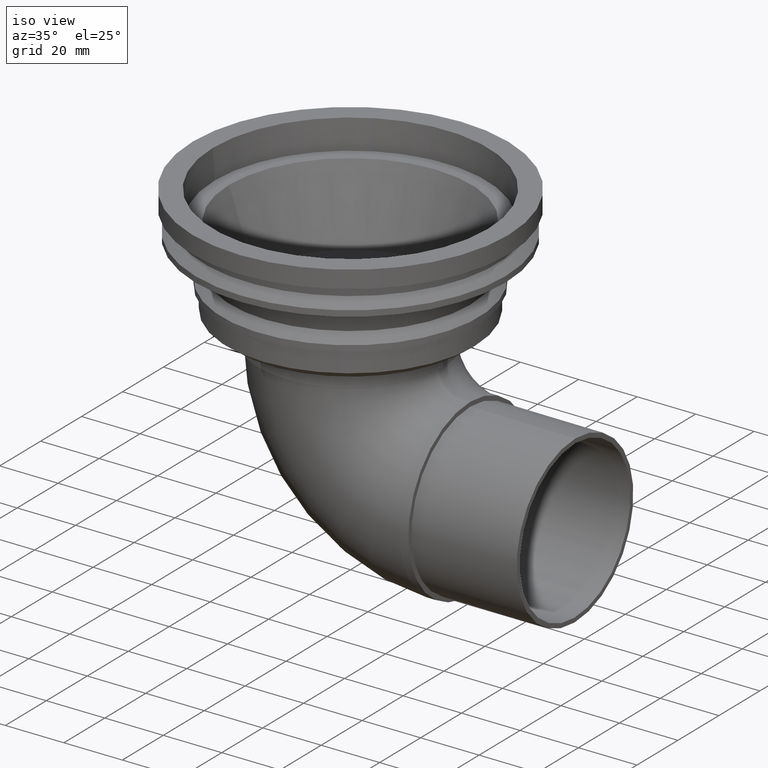
[diagram: clean part render]
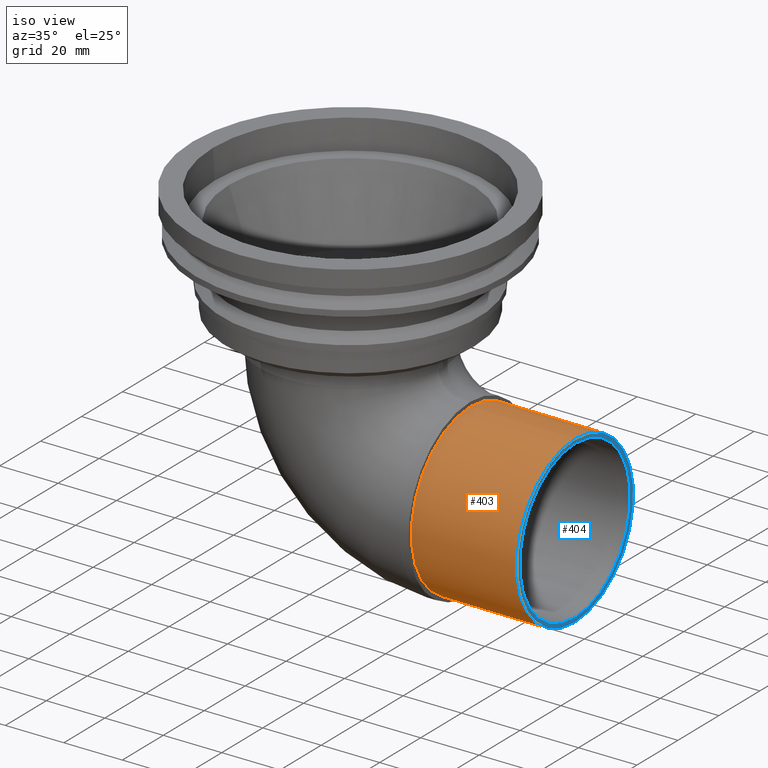
[diagram: same view with the hole feature highlighted: cylindrical wall and planar end face, labeled with their STEP entity ids]
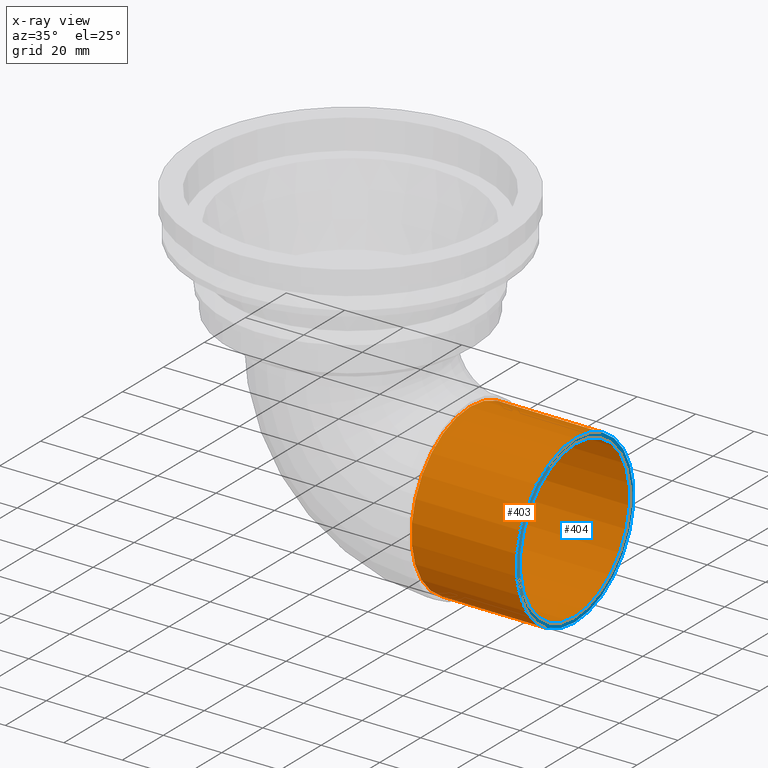
[diagram: x-ray of the same camera — body ghosted, the hole faces saturated]
A machine part, iso view. The highlighted faces form one hole feature of diameter 57 mm: the cylindrical wall (entity #403, orange) and its adjacent planar end face (entity #404, blue) — they share a circular edge in the B-rep.
The next image is the same camera in x-ray (body ghosted, the hole faces saturated) — the bore reads through the body.
Wall:
#41=CYLINDRICAL_SURFACE('',#485,28.5);
#108=ORIENTED_EDGE('',*,*,#146,.T.);
#109=ORIENTED_EDGE('',*,*,#145,.F.);
#145=EDGE_CURVE('',#180,#180,#215,.T.);
#146=EDGE_CURVE('',#181,#181,#216,.T.);
#180=VERTEX_POINT('',#731);
#181=VERTEX_POINT('',#734);
#215=CIRCLE('',#484,28.5);
#216=CIRCLE('',#486,28.5);
#283=EDGE_LOOP('',(#108));
#284=EDGE_LOOP('',(#109));
#353=FACE_BOUND('',#283,.T.);
#354=FACE_BOUND('',#284,.T.);
#403=ADVANCED_FACE('',(#353,#354),#41,.T.);
#484=AXIS2_PLACEMENT_3D('',#730,#622,#623);
#485=AXIS2_PLACEMENT_3D('',#732,#624,#625);
#486=AXIS2_PLACEMENT_3D('',#733,#626,#627);
#622=DIRECTION('',(-0.999986292247427,0.,0.00523596383141975));
#623=DIRECTION('',(0.00523596383141975,0.,0.999986292247427));
#624=DIRECTION('',(-0.999986292247427,0.,0.00523596383141975));
#625=DIRECTION('',(0.00523596383141975,0.,0.999986292247427));
#626=DIRECTION('',(-0.999986292247427,0.,0.00523596383141975));
#627=DIRECTION('',(0.00523596383141975,0.,0.999986292247427));
#730=CARTESIAN_POINT('',(40.8009922511483,0.,-85.0151869968965));
#731=CARTESIAN_POINT('',(40.9502172203438,0.,-56.5155776678448));
#732=CARTESIAN_POINT('',(37.8010333744061,0.,-84.9994791054022));
#733=CARTESIAN_POINT('',(76.8004987720557,0.,-85.2036816948276));
#734=CARTESIAN_POINT('',(76.9497237412512,0.,-56.7040723657759));
End face:
#110=ORIENTED_EDGE('',*,*,#143,.T.);
#111=ORIENTED_EDGE('',*,*,#146,.F.);
#143=EDGE_CURVE('',#178,#178,#213,.T.);
#146=EDGE_CURVE('',#181,#181,#216,.T.);
#178=VERTEX_POINT('',#725);
#181=VERTEX_POINT('',#734);
#213=CIRCLE('',#480,27.);
#216=CIRCLE('',#486,28.5);
#285=EDGE_LOOP('',(#110));
#286=EDGE_LOOP('',(#111));
#355=FACE_BOUND('',#285,.T.);
#356=FACE_BOUND('',#286,.T.);
#369=PLANE('',#487);
#404=ADVANCED_FACE('',(#355,#356),#369,.T.);
#480=AXIS2_PLACEMENT_3D('',#724,#614,#615);
#486=AXIS2_PLACEMENT_3D('',#733,#626,#627);
#487=AXIS2_PLACEMENT_3D('',#735,#628,#629);
#614=DIRECTION('',(-0.999986292247427,0.,0.00523596383141975));
#615=DIRECTION('',(0.00523596383141975,0.,0.999986292247427));
#626=DIRECTION('',(-0.999986292247427,0.,0.00523596383141975));
#627=DIRECTION('',(0.00523596383141975,0.,0.999986292247427));
#628=DIRECTION('',(0.999986292247427,0.,-0.00523596383141975));
#629=DIRECTION('',(-0.00523596383141975,0.,-0.999986292247427));
#724=CARTESIAN_POINT('',(76.8004987720557,0.,-85.2036816948276));
#725=CARTESIAN_POINT('',(76.941869795504,0.,-58.204051804147));
#733=CARTESIAN_POINT('',(76.8004987720557,0.,-85.2036816948276));
#734=CARTESIAN_POINT('',(76.9497237412512,0.,-56.7040723657759));
#735=CARTESIAN_POINT('',(76.9497237412512,0.,-56.7040723657759));